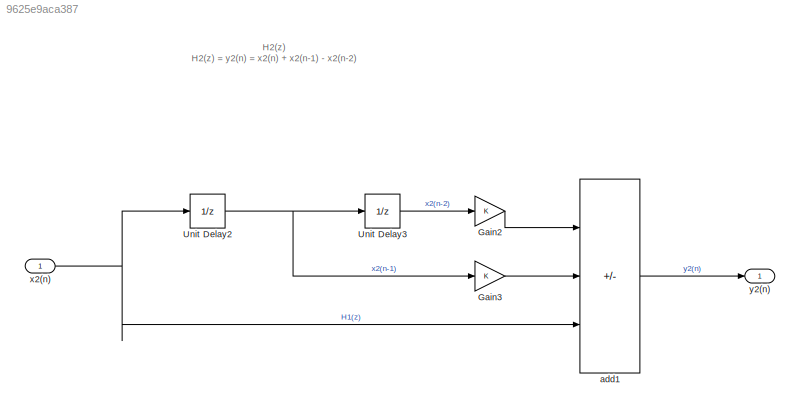
MODEL slx_9625e9aca387
KIND model
CONFIG AbsTol = auto
CONFIG EnableMultiTasking = off
CONFIG FixedStep = auto
CONFIG MaxStep = auto
CONFIG MinStep = auto
CONFIG RelTol = 1e-3
CONFIG SampleTimeConstraint = Unconstrained
CONFIG SolverName = VariableStepAuto
CONFIG StartTime = 0.0
CONFIG StopTime = 10.0
BLOCK [Gain] Gain2
BLOCK [Gain] Gain3
BLOCK [UnitDelay] Unit Delay2
  HasFrameUpgradeWarning = on
  SampleTime = -1
BLOCK [UnitDelay] Unit Delay3
  HasFrameUpgradeWarning = on
  SampleTime = -1
BLOCK [Sum] add1
  IconShape = rectangular
  Inputs = -++
  Ports = [3, 1]
BLOCK [Inport] x2(n)
  OutDataTypeStr = double
  PortDimensions = 1
  SampleTime = 0
  SamplingMode = Sample based
  SignalType = real
BLOCK [Outport] y2(n)
  OutDataTypeStr = double
  PortDimensions = 1
  SampleTime = 0
  SamplingMode = Sample based
  SignalType = real
ANNOTATION (root): H2(z) H2(z) = y2(n) = x2(n) + x2(n-1) - x2(n-2)
LINE Gain2:1 -> add1:1
LINE Gain3:1 -> add1:2
NET Unit Delay2:1 -> Gain3:1, Unit Delay3:1
LINE Unit Delay3:1 -> Gain2:1
LINE add1:1 -> y2(n):1
NET x2(n):1 -> Unit Delay2:1, add1:3
note: NET lines group one-source signal fan-out (src -> all destinations, sorted); 1:1 wires keep LINE
